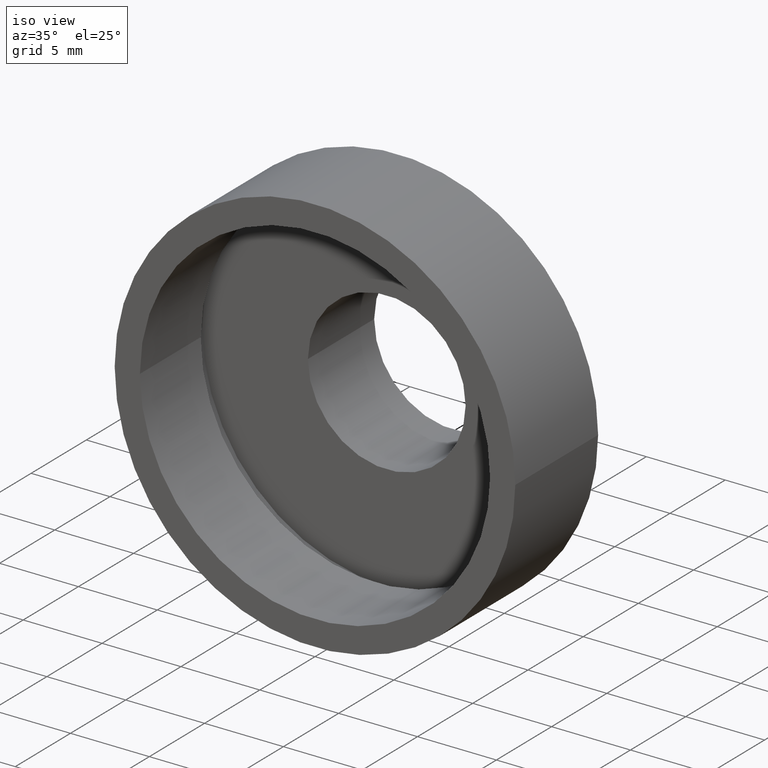
[diagram: clean part render]
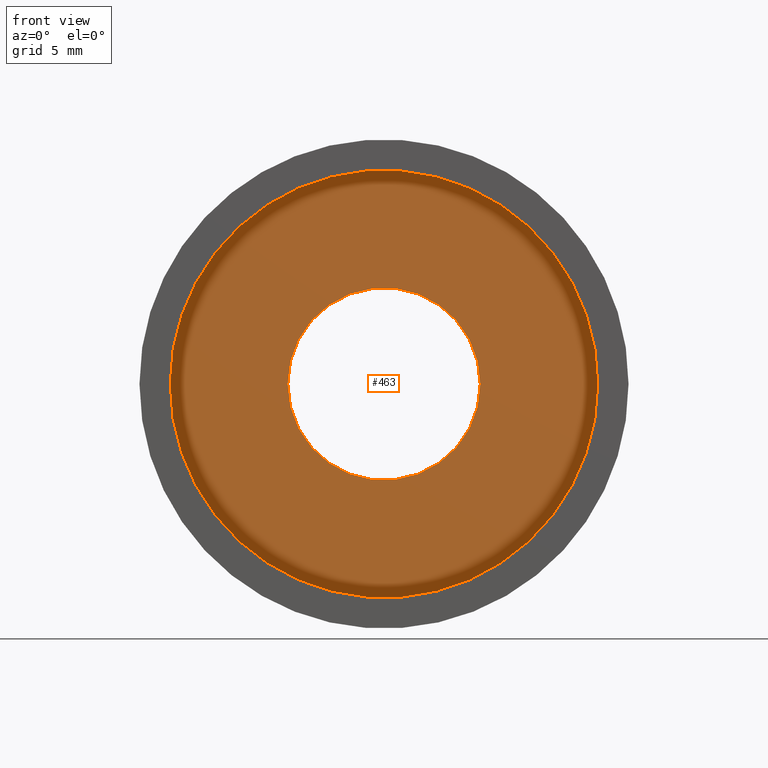
[diagram: tour spotlight — one face highlighted and labeled with its STEP entity id]
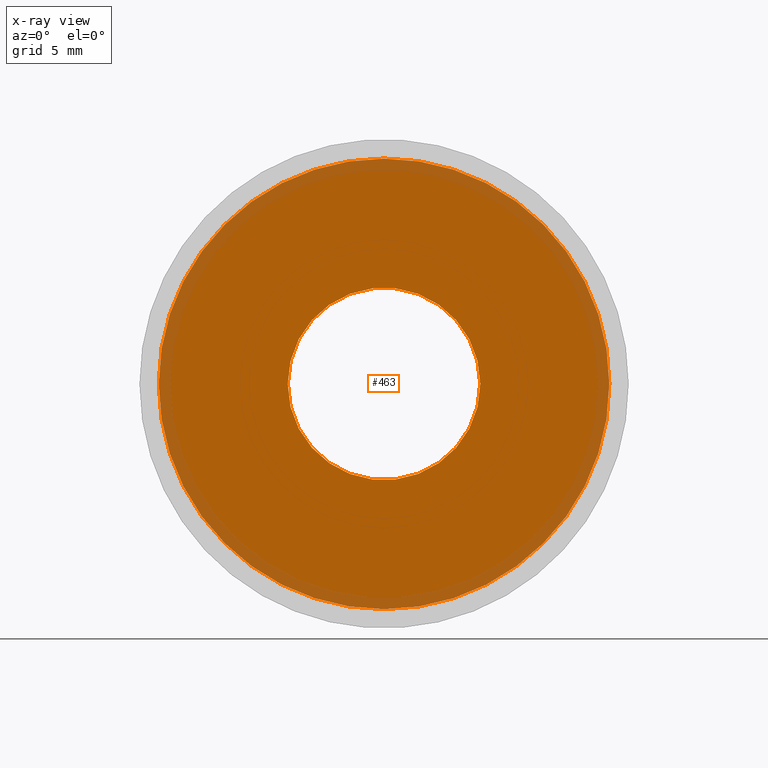
[diagram: x-ray of the same camera — body ghosted, this tour face saturated]
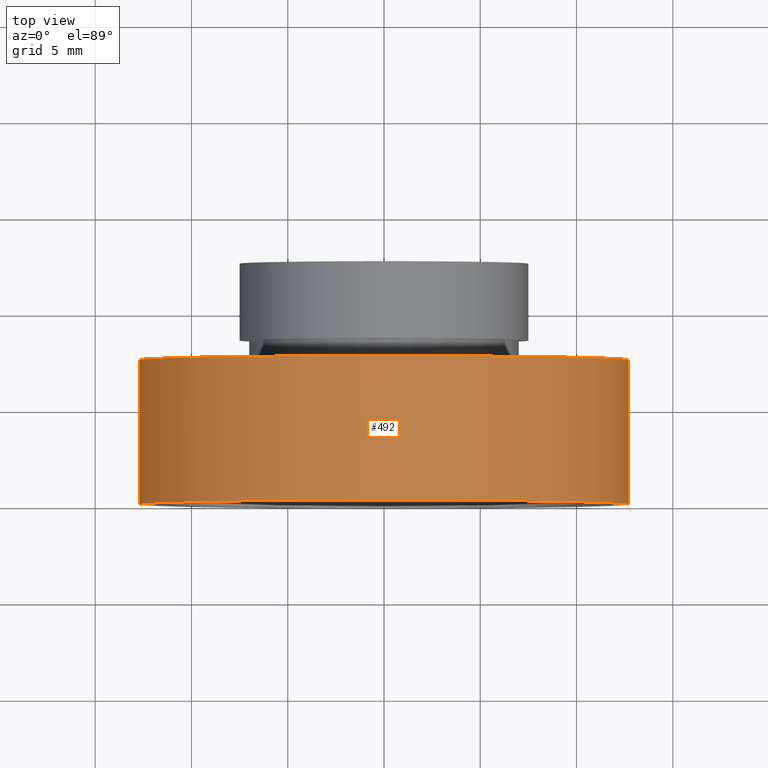
[diagram: tour spotlight — one face highlighted and labeled with its STEP entity id]
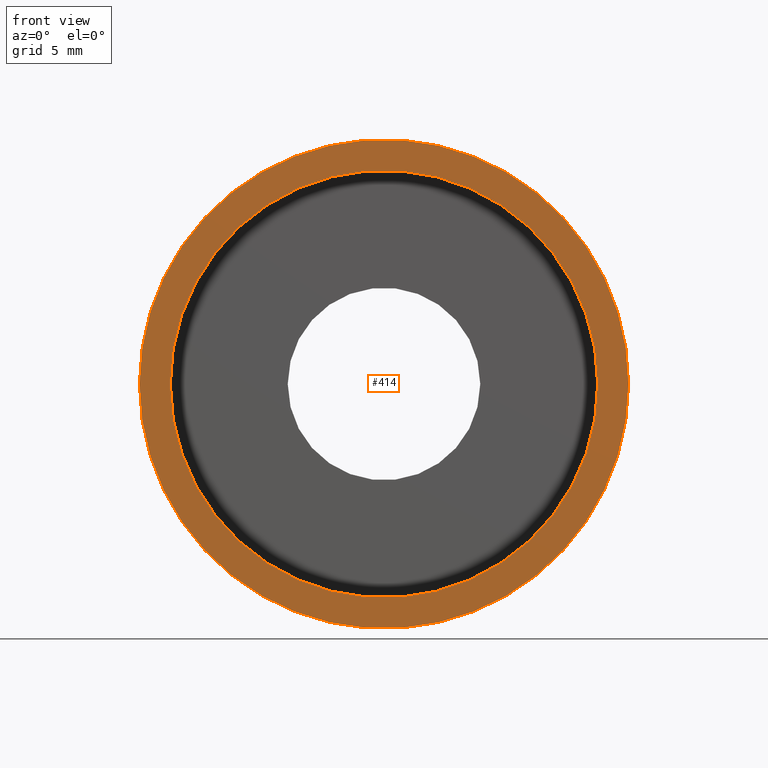
[diagram: tour spotlight — one face highlighted and labeled with its STEP entity id]
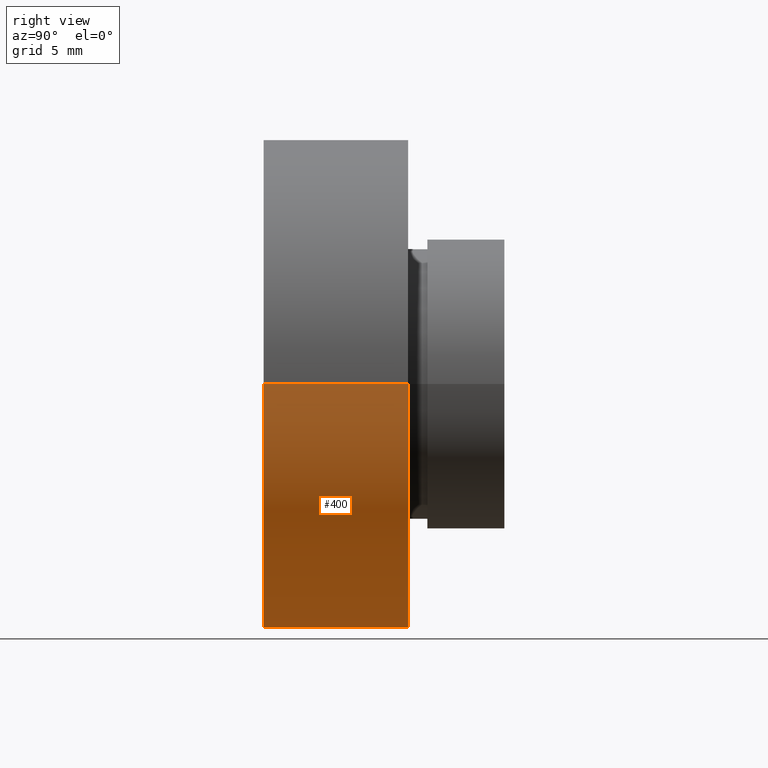
[diagram: tour spotlight — one face highlighted and labeled with its STEP entity id]
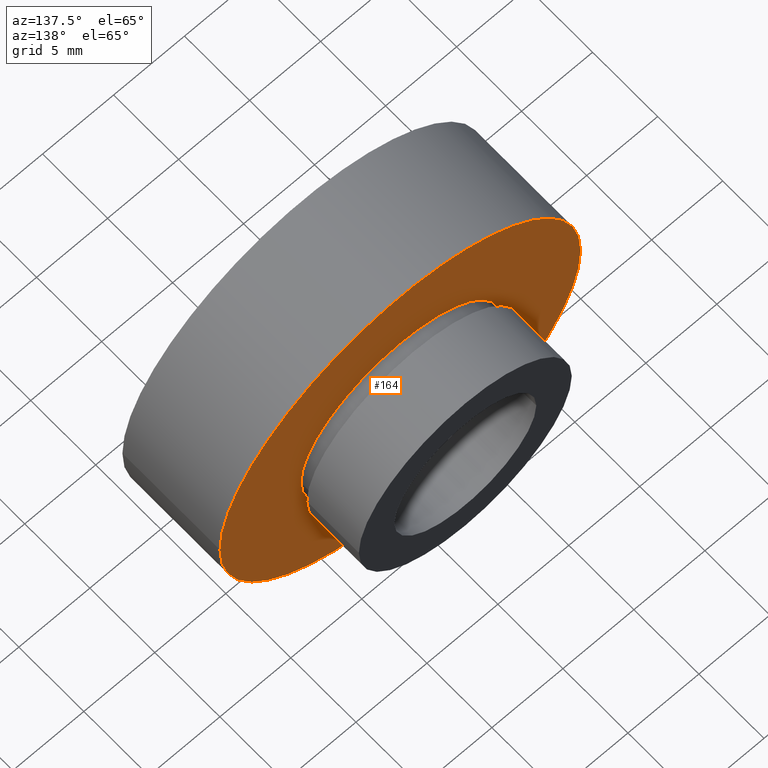
[diagram: tour spotlight — one face highlighted and labeled with its STEP entity id]
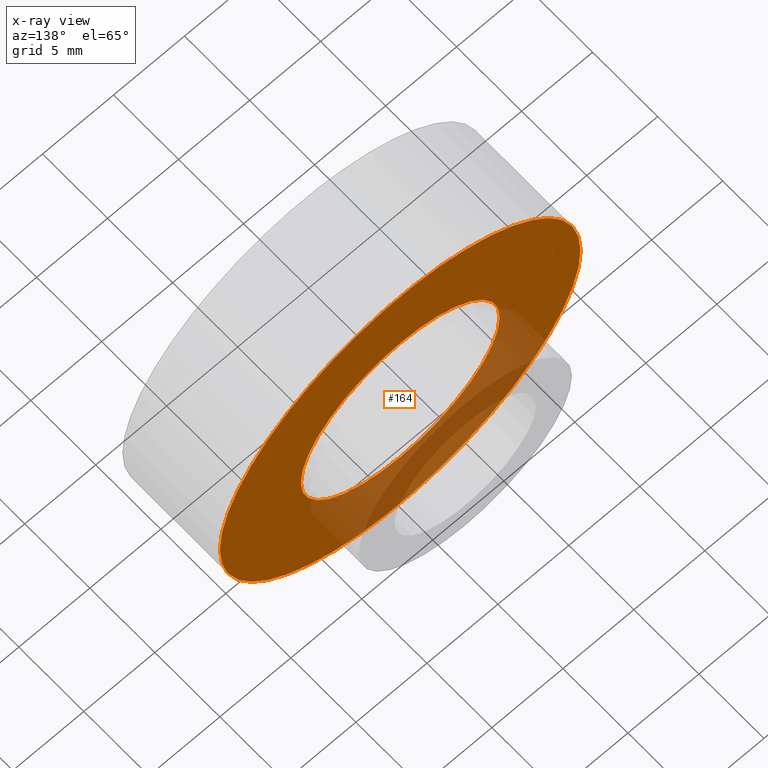
[diagram: x-ray of the same camera — body ghosted, this tour face saturated]
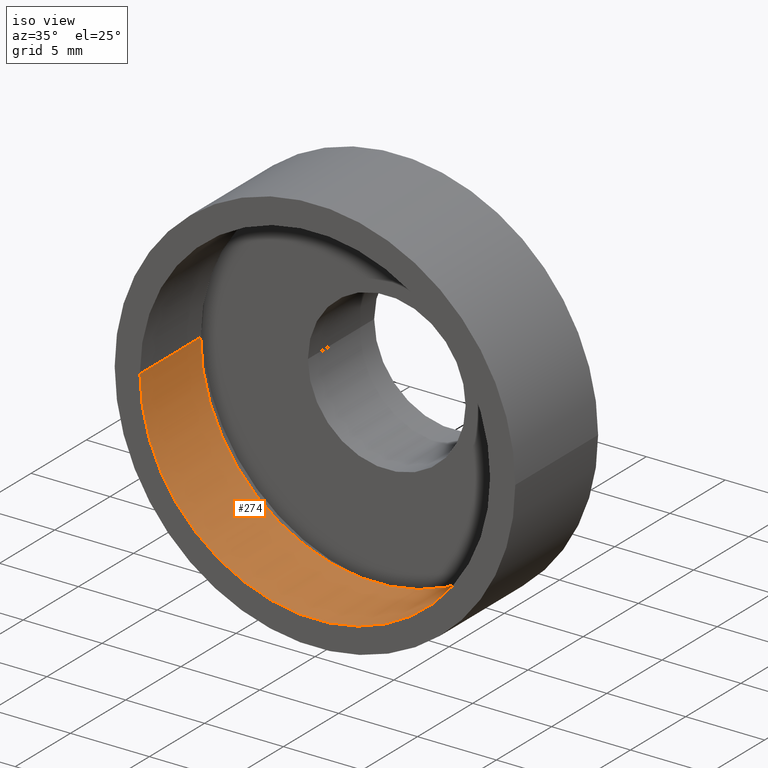
[diagram: tour spotlight — one face highlighted and labeled with its STEP entity id]
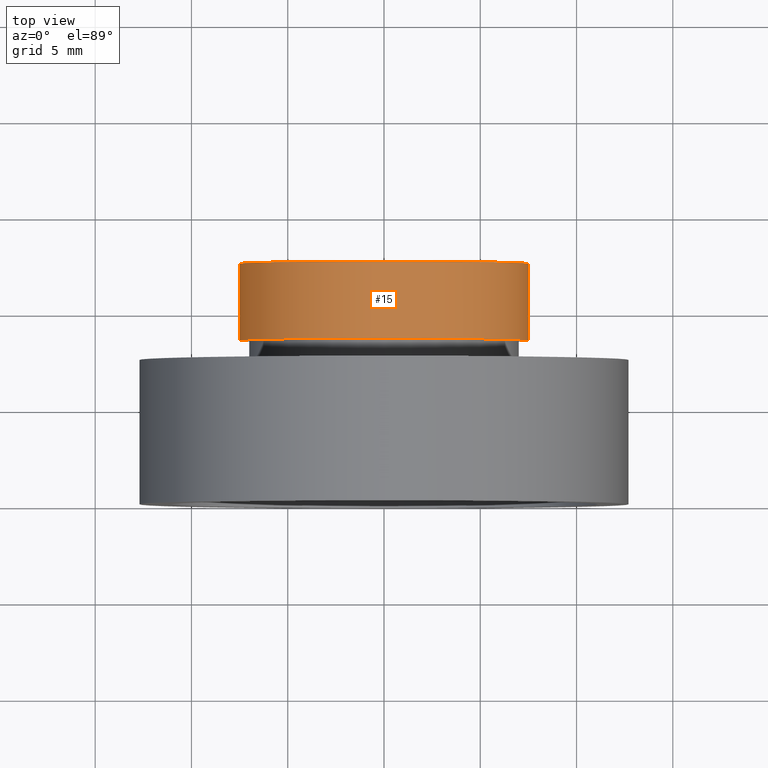
[diagram: tour spotlight — one face highlighted and labeled with its STEP entity id]
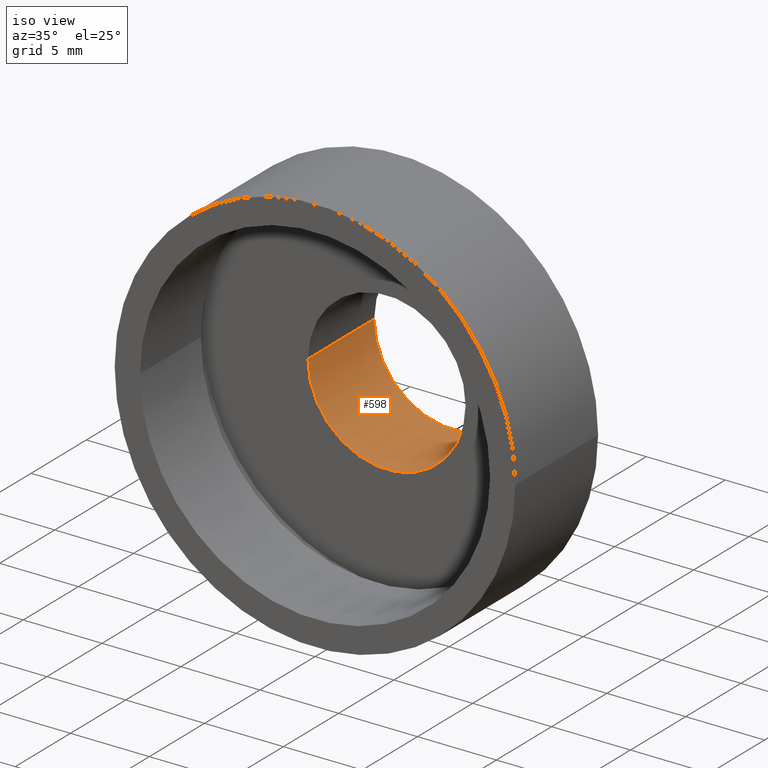
[diagram: tour spotlight — one face highlighted and labeled with its STEP entity id]
A machine part: a face-by-face anatomy tour. The part has 18 B-rep faces; the first image is the clean iso view, then the 8 largest visible faces are spotlighted one at a time (largest first), each with its STEP entity span.

Face 1 — front view, entity #463. An x-ray twin of the same camera follows (body ghosted, this face saturated) — the face is partly hidden behind the body. In plain terms, the highlighted planar face has unit normal (-0, 1, 0).
Definition (entity closure, byte-faithful):
#23 = DIRECTION ( 'NONE',  ( -1.224646799147351000E-016, 1.000000000000000000, 0.0000000000000000000 ) ) ;
#30 = ORIENTED_EDGE ( 'NONE', *, *, #561, .T. ) ;
#51 = CARTESIAN_POINT ( 'NONE',  ( 5.000000000000001800, 6.500000000000000000, 6.123233995736767300E-016 ) ) ;
#55 = DIRECTION ( 'NONE',  ( -1.000000000000000000, -1.482669637587014800E-016, 0.0000000000000000000 ) ) ;
#59 = EDGE_CURVE ( 'NONE', #60, #207, #167, .T. ) ;
#60 = VERTEX_POINT ( 'NONE', #355 ) ;
#111 = EDGE_LOOP ( 'NONE', ( #214, #322 ) ) ;
#143 = DIRECTION ( 'NONE',  ( -1.000000000000000000, -1.482669637587014800E-016, 0.0000000000000000000 ) ) ;
#165 = DIRECTION ( 'NONE',  ( -1.224646799147351000E-016, 1.000000000000000000, -0.0000000000000000000 ) ) ;
#167 = CIRCLE ( 'NONE', #396, 11.69999999999999900 ) ;
#179 = DIRECTION ( 'NONE',  ( -1.224646799147351000E-016, 1.000000000000000000, -0.0000000000000000000 ) ) ;
#185 = VERTEX_POINT ( 'NONE', #51 ) ;
#207 = VERTEX_POINT ( 'NONE', #469 ) ;
#214 = ORIENTED_EDGE ( 'NONE', *, *, #59, .F. ) ;
#253 = DIRECTION ( 'NONE',  ( -1.000000000000000000, -1.224646799147351000E-016, 0.0000000000000000000 ) ) ;
#258 = EDGE_CURVE ( 'NONE', #444, #185, #430, .T. ) ;
#304 = EDGE_LOOP ( 'NONE', ( #545, #30 ) ) ;
#322 = ORIENTED_EDGE ( 'NONE', *, *, #562, .F. ) ;
#355 = CARTESIAN_POINT ( 'NONE',  ( -11.69999999999999800, 6.499999999999995600, 0.0000000000000000000 ) ) ;
#361 = FACE_BOUND ( 'NONE', #304, .T. ) ;
#366 = AXIS2_PLACEMENT_3D ( 'NONE', #619, #165, #488 ) ;
#375 = DIRECTION ( 'NONE',  ( -1.224646799147351000E-016, 1.000000000000000000, -0.0000000000000000000 ) ) ;
#381 = CARTESIAN_POINT ( 'NONE',  ( 1.271920398992858000E-015, 6.499999999999997300, 0.0000000000000000000 ) ) ;
#384 = DIRECTION ( 'NONE',  ( -1.000000000000000000, -1.734723475976806800E-016, 0.0000000000000000000 ) ) ;
#391 = CIRCLE ( 'NONE', #471, 5.000000000000000900 ) ;
#396 = AXIS2_PLACEMENT_3D ( 'NONE', #381, #179, #143 ) ;
#412 = FACE_OUTER_BOUND ( 'NONE', #111, .T. ) ;
#430 = CIRCLE ( 'NONE', #366, 5.000000000000000900 ) ;
#440 = AXIS2_PLACEMENT_3D ( 'NONE', #606, #375, #55 ) ;
#442 = PLANE ( 'NONE',  #557 ) ;
#444 = VERTEX_POINT ( 'NONE', #556 ) ;
#457 = CIRCLE ( 'NONE', #440, 11.69999999999999900 ) ;
#463 = ADVANCED_FACE ( 'NONE', ( #412, #361 ), #442, .F. ) ;
#469 = CARTESIAN_POINT ( 'NONE',  ( 11.70000000000000100, 6.499999999999999100, 1.432836755002403100E-015 ) ) ;
#471 = AXIS2_PLACEMENT_3D ( 'NONE', #511, #555, #384 ) ;
#488 = DIRECTION ( 'NONE',  ( -1.000000000000000000, -1.734723475976806800E-016, 0.0000000000000000000 ) ) ;
#511 = CARTESIAN_POINT ( 'NONE',  ( 1.271920398992857800E-015, 6.499999999999999100, 0.0000000000000000000 ) ) ;
#545 = ORIENTED_EDGE ( 'NONE', *, *, #258, .T. ) ;
#555 = DIRECTION ( 'NONE',  ( -1.224646799147351000E-016, 1.000000000000000000, -0.0000000000000000000 ) ) ;
#556 = CARTESIAN_POINT ( 'NONE',  ( -5.000000000000000000, 6.499999999999998200, 0.0000000000000000000 ) ) ;
#557 = AXIS2_PLACEMENT_3D ( 'NONE', #577, #23, #253 ) ;
#561 = EDGE_CURVE ( 'NONE', #185, #444, #391, .T. ) ;
#562 = EDGE_CURVE ( 'NONE', #207, #60, #457, .T. ) ;
#577 = CARTESIAN_POINT ( 'NONE',  ( 5.000000000000001800, 6.499999999999999100, 0.0000000000000000000 ) ) ;
#606 = CARTESIAN_POINT ( 'NONE',  ( 1.271920398992858000E-015, 6.499999999999997300, 0.0000000000000000000 ) ) ;
#619 = CARTESIAN_POINT ( 'NONE',  ( 1.271920398992857800E-015, 6.499999999999999100, 0.0000000000000000000 ) ) ;

Face 2 — top view, entity #492. In plain terms, the highlighted cylindrical surface (partial cylindrical patch) has radius 12.7 mm, axis along (-0, 1, -0).
Definition (entity closure, byte-faithful):
#16 = DIRECTION ( 'NONE',  ( -1.000000000000000000, -1.365923996832131900E-016, 0.0000000000000000000 ) ) ;
#22 = AXIS2_PLACEMENT_3D ( 'NONE', #533, #590, #292 ) ;
#64 = DIRECTION ( 'NONE',  ( -1.000000000000000000, 0.0000000000000000000, 0.0000000000000000000 ) ) ;
#118 = CYLINDRICAL_SURFACE ( 'NONE', #548, 12.69999999999999900 ) ;
#126 = VERTEX_POINT ( 'NONE', #613 ) ;
#137 = CIRCLE ( 'NONE', #22, 12.70000000000000100 ) ;
#150 = CARTESIAN_POINT ( 'NONE',  ( -12.69999999999999900, -1.555301434917135900E-015, 0.0000000000000000000 ) ) ;
#155 = FACE_OUTER_BOUND ( 'NONE', #231, .T. ) ;
#176 = CARTESIAN_POINT ( 'NONE',  ( 0.0000000000000000000, 16.88601823708207700, 0.0000000000000000000 ) ) ;
#192 = DIRECTION ( 'NONE',  ( -1.224646799147351000E-016, 1.000000000000000000, -0.0000000000000000000 ) ) ;
#193 = ORIENTED_EDGE ( 'NONE', *, *, #307, .F. ) ;
#221 = VECTOR ( 'NONE', #504, 1000.000000000000000 ) ;
#231 = EDGE_LOOP ( 'NONE', ( #418, #281, #460, #193 ) ) ;
#232 = CARTESIAN_POINT ( 'NONE',  ( -12.69999999999999900, 16.88601823708207700, 0.0000000000000000000 ) ) ;
#281 = ORIENTED_EDGE ( 'NONE', *, *, #551, .T. ) ;
#292 = DIRECTION ( 'NONE',  ( -1.000000000000000000, -1.224646799147351000E-016, 0.0000000000000000000 ) ) ;
#306 = CARTESIAN_POINT ( 'NONE',  ( 1.149455719078122700E-015, 7.499999999999998200, 0.0000000000000000000 ) ) ;
#307 = EDGE_CURVE ( 'NONE', #435, #126, #475, .T. ) ;
#316 = LINE ( 'NONE', #580, #542 ) ;
#327 = VERTEX_POINT ( 'NONE', #346 ) ;
#346 = CARTESIAN_POINT ( 'NONE',  ( 12.70000000000000500, 1.555301434917136300E-015, 1.555301434917138800E-015 ) ) ;
#360 = VERTEX_POINT ( 'NONE', #585 ) ;
#372 = EDGE_CURVE ( 'NONE', #435, #327, #137, .T. ) ;
#418 = ORIENTED_EDGE ( 'NONE', *, *, #372, .T. ) ;
#423 = DIRECTION ( 'NONE',  ( -1.224646799147351000E-016, 1.000000000000000000, -0.0000000000000000000 ) ) ;
#435 = VERTEX_POINT ( 'NONE', #150 ) ;
#460 = ORIENTED_EDGE ( 'NONE', *, *, #539, .F. ) ;
#475 = LINE ( 'NONE', #232, #221 ) ;
#477 = AXIS2_PLACEMENT_3D ( 'NONE', #306, #192, #16 ) ;
#492 = ADVANCED_FACE ( 'NONE', ( #155 ), #118, .T. ) ;
#504 = DIRECTION ( 'NONE',  ( -1.224646799147351000E-016, 1.000000000000000000, -0.0000000000000000000 ) ) ;
#533 = CARTESIAN_POINT ( 'NONE',  ( 2.067940818438636100E-015, 0.0000000000000000000, 0.0000000000000000000 ) ) ;
#539 = EDGE_CURVE ( 'NONE', #126, #360, #552, .T. ) ;
#542 = VECTOR ( 'NONE', #591, 1000.000000000000000 ) ;
#548 = AXIS2_PLACEMENT_3D ( 'NONE', #176, #423, #64 ) ;
#551 = EDGE_CURVE ( 'NONE', #327, #360, #316, .T. ) ;
#552 = CIRCLE ( 'NONE', #477, 12.69999999999999800 ) ;
#580 = CARTESIAN_POINT ( 'NONE',  ( 12.69999999999999900, 16.88601823708207700, 1.555301434917138400E-015 ) ) ;
#585 = CARTESIAN_POINT ( 'NONE',  ( 12.69999999999999900, 7.500000000000000000, 1.555301434917138400E-015 ) ) ;
#590 = DIRECTION ( 'NONE',  ( -1.224646799147351000E-016, 1.000000000000000000, -0.0000000000000000000 ) ) ;
#591 = DIRECTION ( 'NONE',  ( -1.224646799147351000E-016, 1.000000000000000000, -0.0000000000000000000 ) ) ;
#613 = CARTESIAN_POINT ( 'NONE',  ( -12.69999999999999600, 7.499999999999996400, 0.0000000000000000000 ) ) ;

Face 3 — front view, entity #414. In plain terms, the highlighted planar face has unit normal (-0, 1, 0).
Definition (entity closure, byte-faithful):
#22 = AXIS2_PLACEMENT_3D ( 'NONE', #533, #590, #292 ) ;
#45 = CARTESIAN_POINT ( 'NONE',  ( 2.067940818438636100E-015, 0.0000000000000000000, 0.0000000000000000000 ) ) ;
#76 = DIRECTION ( 'NONE',  ( -1.224646799147351000E-016, 1.000000000000000000, -0.0000000000000000000 ) ) ;
#93 = EDGE_CURVE ( 'NONE', #327, #435, #160, .T. ) ;
#116 = AXIS2_PLACEMENT_3D ( 'NONE', #558, #600, #464 ) ;
#128 = CARTESIAN_POINT ( 'NONE',  ( 11.10000000000000100, 1.359357947053559600E-015, 1.359357947053562200E-015 ) ) ;
#131 = DIRECTION ( 'NONE',  ( -1.000000000000000000, -1.224646799147351000E-016, 0.0000000000000000000 ) ) ;
#137 = CIRCLE ( 'NONE', #22, 12.70000000000000100 ) ;
#150 = CARTESIAN_POINT ( 'NONE',  ( -12.69999999999999900, -1.555301434917135900E-015, 0.0000000000000000000 ) ) ;
#152 = DIRECTION ( 'NONE',  ( -1.224646799147351000E-016, 1.000000000000000000, -0.0000000000000000000 ) ) ;
#160 = CIRCLE ( 'NONE', #465, 12.70000000000000100 ) ;
#170 = FACE_OUTER_BOUND ( 'NONE', #294, .T. ) ;
#184 = ORIENTED_EDGE ( 'NONE', *, *, #93, .F. ) ;
#223 = CARTESIAN_POINT ( 'NONE',  ( -11.09999999999999800, -1.359357947053559600E-015, 0.0000000000000000000 ) ) ;
#247 = ORIENTED_EDGE ( 'NONE', *, *, #372, .F. ) ;
#252 = AXIS2_PLACEMENT_3D ( 'NONE', #379, #76, #530 ) ;
#292 = DIRECTION ( 'NONE',  ( -1.000000000000000000, -1.224646799147351000E-016, 0.0000000000000000000 ) ) ;
#294 = EDGE_LOOP ( 'NONE', ( #247, #184 ) ) ;
#301 = ORIENTED_EDGE ( 'NONE', *, *, #611, .T. ) ;
#323 = EDGE_LOOP ( 'NONE', ( #378, #301 ) ) ;
#327 = VERTEX_POINT ( 'NONE', #346 ) ;
#330 = DIRECTION ( 'NONE',  ( -1.224646799147351000E-016, 1.000000000000000000, -0.0000000000000000000 ) ) ;
#346 = CARTESIAN_POINT ( 'NONE',  ( 12.70000000000000500, 1.555301434917136300E-015, 1.555301434917138800E-015 ) ) ;
#363 = DIRECTION ( 'NONE',  ( -1.000000000000000000, -1.224646799147351000E-016, 0.0000000000000000000 ) ) ;
#372 = EDGE_CURVE ( 'NONE', #435, #327, #137, .T. ) ;
#378 = ORIENTED_EDGE ( 'NONE', *, *, #571, .T. ) ;
#379 = CARTESIAN_POINT ( 'NONE',  ( 2.067940818438636100E-015, 0.0000000000000000000, 0.0000000000000000000 ) ) ;
#382 = FACE_BOUND ( 'NONE', #323, .T. ) ;
#414 = ADVANCED_FACE ( 'NONE', ( #170, #382 ), #596, .F. ) ;
#432 = VERTEX_POINT ( 'NONE', #128 ) ;
#435 = VERTEX_POINT ( 'NONE', #150 ) ;
#449 = AXIS2_PLACEMENT_3D ( 'NONE', #534, #330, #363 ) ;
#464 = DIRECTION ( 'NONE',  ( -1.000000000000000000, -1.224646799147351000E-016, 0.0000000000000000000 ) ) ;
#465 = AXIS2_PLACEMENT_3D ( 'NONE', #45, #152, #131 ) ;
#472 = CIRCLE ( 'NONE', #252, 11.10000000000000000 ) ;
#530 = DIRECTION ( 'NONE',  ( -1.000000000000000000, -1.224646799147351000E-016, 0.0000000000000000000 ) ) ;
#533 = CARTESIAN_POINT ( 'NONE',  ( 2.067940818438636100E-015, 0.0000000000000000000, 0.0000000000000000000 ) ) ;
#534 = CARTESIAN_POINT ( 'NONE',  ( 2.067940818438636100E-015, 0.0000000000000000000, 0.0000000000000000000 ) ) ;
#536 = VERTEX_POINT ( 'NONE', #223 ) ;
#558 = CARTESIAN_POINT ( 'NONE',  ( 12.70000000000000300, -1.944126793646423000E-016, 0.0000000000000000000 ) ) ;
#571 = EDGE_CURVE ( 'NONE', #536, #432, #618, .T. ) ;
#590 = DIRECTION ( 'NONE',  ( -1.224646799147351000E-016, 1.000000000000000000, -0.0000000000000000000 ) ) ;
#596 = PLANE ( 'NONE',  #116 ) ;
#600 = DIRECTION ( 'NONE',  ( -1.224646799147351000E-016, 1.000000000000000000, 0.0000000000000000000 ) ) ;
#611 = EDGE_CURVE ( 'NONE', #432, #536, #472, .T. ) ;
#618 = CIRCLE ( 'NONE', #449, 11.10000000000000000 ) ;

Face 4 — right view, entity #400. In plain terms, the highlighted cylindrical surface (partial cylindrical patch) has radius 12.7 mm, axis along (-0, 1, -0).
Definition (entity closure, byte-faithful):
#3 = DIRECTION ( 'NONE',  ( -1.000000000000000000, -1.365923996832131900E-016, 0.0000000000000000000 ) ) ;
#45 = CARTESIAN_POINT ( 'NONE',  ( 2.067940818438636100E-015, 0.0000000000000000000, 0.0000000000000000000 ) ) ;
#86 = CIRCLE ( 'NONE', #377, 12.69999999999999800 ) ;
#93 = EDGE_CURVE ( 'NONE', #327, #435, #160, .T. ) ;
#113 = EDGE_LOOP ( 'NONE', ( #142, #453, #121, #233 ) ) ;
#121 = ORIENTED_EDGE ( 'NONE', *, *, #307, .T. ) ;
#126 = VERTEX_POINT ( 'NONE', #613 ) ;
#131 = DIRECTION ( 'NONE',  ( -1.000000000000000000, -1.224646799147351000E-016, 0.0000000000000000000 ) ) ;
#142 = ORIENTED_EDGE ( 'NONE', *, *, #551, .F. ) ;
#150 = CARTESIAN_POINT ( 'NONE',  ( -12.69999999999999900, -1.555301434917135900E-015, 0.0000000000000000000 ) ) ;
#152 = DIRECTION ( 'NONE',  ( -1.224646799147351000E-016, 1.000000000000000000, -0.0000000000000000000 ) ) ;
#160 = CIRCLE ( 'NONE', #465, 12.70000000000000100 ) ;
#197 = DIRECTION ( 'NONE',  ( -1.000000000000000000, 0.0000000000000000000, 0.0000000000000000000 ) ) ;
#221 = VECTOR ( 'NONE', #504, 1000.000000000000000 ) ;
#232 = CARTESIAN_POINT ( 'NONE',  ( -12.69999999999999900, 16.88601823708207700, 0.0000000000000000000 ) ) ;
#233 = ORIENTED_EDGE ( 'NONE', *, *, #582, .F. ) ;
#307 = EDGE_CURVE ( 'NONE', #435, #126, #475, .T. ) ;
#314 = CARTESIAN_POINT ( 'NONE',  ( 0.0000000000000000000, 16.88601823708207700, 0.0000000000000000000 ) ) ;
#316 = LINE ( 'NONE', #580, #542 ) ;
#327 = VERTEX_POINT ( 'NONE', #346 ) ;
#343 = CYLINDRICAL_SURFACE ( 'NONE', #588, 12.69999999999999900 ) ;
#346 = CARTESIAN_POINT ( 'NONE',  ( 12.70000000000000500, 1.555301434917136300E-015, 1.555301434917138800E-015 ) ) ;
#360 = VERTEX_POINT ( 'NONE', #585 ) ;
#377 = AXIS2_PLACEMENT_3D ( 'NONE', #403, #422, #3 ) ;
#400 = ADVANCED_FACE ( 'NONE', ( #420 ), #343, .T. ) ;
#403 = CARTESIAN_POINT ( 'NONE',  ( 1.149455719078122700E-015, 7.499999999999998200, 0.0000000000000000000 ) ) ;
#420 = FACE_OUTER_BOUND ( 'NONE', #113, .T. ) ;
#422 = DIRECTION ( 'NONE',  ( -1.224646799147351000E-016, 1.000000000000000000, -0.0000000000000000000 ) ) ;
#435 = VERTEX_POINT ( 'NONE', #150 ) ;
#453 = ORIENTED_EDGE ( 'NONE', *, *, #93, .T. ) ;
#465 = AXIS2_PLACEMENT_3D ( 'NONE', #45, #152, #131 ) ;
#475 = LINE ( 'NONE', #232, #221 ) ;
#504 = DIRECTION ( 'NONE',  ( -1.224646799147351000E-016, 1.000000000000000000, -0.0000000000000000000 ) ) ;
#542 = VECTOR ( 'NONE', #591, 1000.000000000000000 ) ;
#551 = EDGE_CURVE ( 'NONE', #327, #360, #316, .T. ) ;
#579 = DIRECTION ( 'NONE',  ( -1.224646799147351000E-016, 1.000000000000000000, -0.0000000000000000000 ) ) ;
#580 = CARTESIAN_POINT ( 'NONE',  ( 12.69999999999999900, 16.88601823708207700, 1.555301434917138400E-015 ) ) ;
#582 = EDGE_CURVE ( 'NONE', #360, #126, #86, .T. ) ;
#585 = CARTESIAN_POINT ( 'NONE',  ( 12.69999999999999900, 7.500000000000000000, 1.555301434917138400E-015 ) ) ;
#588 = AXIS2_PLACEMENT_3D ( 'NONE', #314, #579, #197 ) ;
#591 = DIRECTION ( 'NONE',  ( -1.224646799147351000E-016, 1.000000000000000000, -0.0000000000000000000 ) ) ;
#613 = CARTESIAN_POINT ( 'NONE',  ( -12.69999999999999600, 7.499999999999996400, 0.0000000000000000000 ) ) ;

Face 5 — auxiliary view, entity #164. An x-ray twin of the same camera follows (body ghosted, this face saturated) — the face is partly hidden behind the body. In plain terms, the highlighted planar face has unit normal (0, -1, 0).
Definition (entity closure, byte-faithful):
#3 = DIRECTION ( 'NONE',  ( -1.000000000000000000, -1.365923996832131900E-016, 0.0000000000000000000 ) ) ;
#16 = DIRECTION ( 'NONE',  ( -1.000000000000000000, -1.365923996832131900E-016, 0.0000000000000000000 ) ) ;
#20 = ORIENTED_EDGE ( 'NONE', *, *, #594, .F. ) ;
#33 = AXIS2_PLACEMENT_3D ( 'NONE', #114, #297, #69 ) ;
#49 = DIRECTION ( 'NONE',  ( 1.224646799147351000E-016, -1.000000000000000000, 0.0000000000000000000 ) ) ;
#69 = DIRECTION ( 'NONE',  ( -1.000000000000000000, -1.239088197126290800E-016, 0.0000000000000000000 ) ) ;
#86 = CIRCLE ( 'NONE', #377, 12.69999999999999800 ) ;
#110 = DIRECTION ( 'NONE',  ( 1.000000000000000000, 1.224646799147351000E-016, 0.0000000000000000000 ) ) ;
#114 = CARTESIAN_POINT ( 'NONE',  ( 1.149455719078122500E-015, 7.500000000000000000, 0.0000000000000000000 ) ) ;
#115 = ORIENTED_EDGE ( 'NONE', *, *, #210, .F. ) ;
#123 = CARTESIAN_POINT ( 'NONE',  ( 7.000000000000000900, 7.500000000000000000, 0.0000000000000000000 ) ) ;
#126 = VERTEX_POINT ( 'NONE', #613 ) ;
#134 = CARTESIAN_POINT ( 'NONE',  ( 7.000000000000000900, 7.500000000000000900, 8.572527594031473200E-016 ) ) ;
#158 = ORIENTED_EDGE ( 'NONE', *, *, #539, .T. ) ;
#164 = ADVANCED_FACE ( 'NONE', ( #515, #500 ), #351, .F. ) ;
#169 = DIRECTION ( 'NONE',  ( -1.000000000000000000, -1.239088197126290800E-016, 0.0000000000000000000 ) ) ;
#192 = DIRECTION ( 'NONE',  ( -1.224646799147351000E-016, 1.000000000000000000, -0.0000000000000000000 ) ) ;
#196 = CIRCLE ( 'NONE', #341, 7.000000000000000000 ) ;
#206 = CARTESIAN_POINT ( 'NONE',  ( 1.149455719078122500E-015, 7.500000000000000000, 0.0000000000000000000 ) ) ;
#210 = EDGE_CURVE ( 'NONE', #535, #280, #487, .T. ) ;
#280 = VERTEX_POINT ( 'NONE', #519 ) ;
#285 = DIRECTION ( 'NONE',  ( -1.224646799147351000E-016, 1.000000000000000000, -0.0000000000000000000 ) ) ;
#297 = DIRECTION ( 'NONE',  ( -1.224646799147351000E-016, 1.000000000000000000, -0.0000000000000000000 ) ) ;
#300 = AXIS2_PLACEMENT_3D ( 'NONE', #123, #49, #110 ) ;
#306 = CARTESIAN_POINT ( 'NONE',  ( 1.149455719078122700E-015, 7.499999999999998200, 0.0000000000000000000 ) ) ;
#341 = AXIS2_PLACEMENT_3D ( 'NONE', #206, #285, #169 ) ;
#351 = PLANE ( 'NONE',  #300 ) ;
#356 = EDGE_LOOP ( 'NONE', ( #158, #470 ) ) ;
#360 = VERTEX_POINT ( 'NONE', #585 ) ;
#376 = EDGE_LOOP ( 'NONE', ( #20, #115 ) ) ;
#377 = AXIS2_PLACEMENT_3D ( 'NONE', #403, #422, #3 ) ;
#403 = CARTESIAN_POINT ( 'NONE',  ( 1.149455719078122700E-015, 7.499999999999998200, 0.0000000000000000000 ) ) ;
#422 = DIRECTION ( 'NONE',  ( -1.224646799147351000E-016, 1.000000000000000000, -0.0000000000000000000 ) ) ;
#470 = ORIENTED_EDGE ( 'NONE', *, *, #582, .T. ) ;
#477 = AXIS2_PLACEMENT_3D ( 'NONE', #306, #192, #16 ) ;
#487 = CIRCLE ( 'NONE', #33, 7.000000000000000000 ) ;
#500 = FACE_OUTER_BOUND ( 'NONE', #356, .T. ) ;
#515 = FACE_BOUND ( 'NONE', #376, .T. ) ;
#519 = CARTESIAN_POINT ( 'NONE',  ( -6.999999999999999100, 7.499999999999999100, 0.0000000000000000000 ) ) ;
#535 = VERTEX_POINT ( 'NONE', #134 ) ;
#539 = EDGE_CURVE ( 'NONE', #126, #360, #552, .T. ) ;
#552 = CIRCLE ( 'NONE', #477, 12.69999999999999800 ) ;
#582 = EDGE_CURVE ( 'NONE', #360, #126, #86, .T. ) ;
#585 = CARTESIAN_POINT ( 'NONE',  ( 12.69999999999999900, 7.500000000000000000, 1.555301434917138400E-015 ) ) ;
#594 = EDGE_CURVE ( 'NONE', #280, #535, #196, .T. ) ;
#613 = CARTESIAN_POINT ( 'NONE',  ( -12.69999999999999600, 7.499999999999996400, 0.0000000000000000000 ) ) ;

Face 6 — iso view, entity #274. In plain terms, the highlighted cylindrical surface (partial cylindrical patch) has radius 11.1 mm, axis along (-0, 1, -0).
Definition (entity closure, byte-faithful):
#21 = VECTOR ( 'NONE', #497, 1000.000000000000000 ) ;
#31 = CARTESIAN_POINT ( 'NONE',  ( 1.394385078907593200E-015, 5.499999999999996400, 0.0000000000000000000 ) ) ;
#61 = EDGE_LOOP ( 'NONE', ( #243, #248, #272, #309 ) ) ;
#72 = CARTESIAN_POINT ( 'NONE',  ( 11.10000000000000000, 16.88601823708207700, 1.359357947053562200E-015 ) ) ;
#76 = DIRECTION ( 'NONE',  ( -1.224646799147351000E-016, 1.000000000000000000, -0.0000000000000000000 ) ) ;
#99 = LINE ( 'NONE', #468, #537 ) ;
#128 = CARTESIAN_POINT ( 'NONE',  ( 11.10000000000000100, 1.359357947053559600E-015, 1.359357947053562200E-015 ) ) ;
#175 = EDGE_CURVE ( 'NONE', #536, #240, #99, .T. ) ;
#189 = CARTESIAN_POINT ( 'NONE',  ( -11.09999999999999800, 5.499999999999994700, 0.0000000000000000000 ) ) ;
#223 = CARTESIAN_POINT ( 'NONE',  ( -11.09999999999999800, -1.359357947053559600E-015, 0.0000000000000000000 ) ) ;
#240 = VERTEX_POINT ( 'NONE', #189 ) ;
#243 = ORIENTED_EDGE ( 'NONE', *, *, #611, .F. ) ;
#248 = ORIENTED_EDGE ( 'NONE', *, *, #478, .T. ) ;
#251 = CARTESIAN_POINT ( 'NONE',  ( 0.0000000000000000000, 16.88601823708207700, 0.0000000000000000000 ) ) ;
#252 = AXIS2_PLACEMENT_3D ( 'NONE', #379, #76, #530 ) ;
#260 = CARTESIAN_POINT ( 'NONE',  ( 11.10000000000000100, 5.499999999999998200, 1.359357947053562200E-015 ) ) ;
#269 = LINE ( 'NONE', #72, #21 ) ;
#270 = AXIS2_PLACEMENT_3D ( 'NONE', #251, #481, #474 ) ;
#272 = ORIENTED_EDGE ( 'NONE', *, *, #532, .T. ) ;
#274 = ADVANCED_FACE ( 'NONE', ( #335 ), #505, .F. ) ;
#309 = ORIENTED_EDGE ( 'NONE', *, *, #175, .F. ) ;
#326 = VERTEX_POINT ( 'NONE', #260 ) ;
#335 = FACE_OUTER_BOUND ( 'NONE', #61, .T. ) ;
#342 = DIRECTION ( 'NONE',  ( -1.000000000000000000, -1.562813942321447800E-016, 0.0000000000000000000 ) ) ;
#349 = CIRCLE ( 'NONE', #495, 11.10000000000000000 ) ;
#379 = CARTESIAN_POINT ( 'NONE',  ( 2.067940818438636100E-015, 0.0000000000000000000, 0.0000000000000000000 ) ) ;
#432 = VERTEX_POINT ( 'NONE', #128 ) ;
#462 = DIRECTION ( 'NONE',  ( -1.224646799147351000E-016, 1.000000000000000000, -0.0000000000000000000 ) ) ;
#468 = CARTESIAN_POINT ( 'NONE',  ( -11.10000000000000000, 16.88601823708207700, 0.0000000000000000000 ) ) ;
#472 = CIRCLE ( 'NONE', #252, 11.10000000000000000 ) ;
#474 = DIRECTION ( 'NONE',  ( -1.000000000000000000, 0.0000000000000000000, 0.0000000000000000000 ) ) ;
#478 = EDGE_CURVE ( 'NONE', #432, #326, #269, .T. ) ;
#481 = DIRECTION ( 'NONE',  ( -1.224646799147351000E-016, 1.000000000000000000, -0.0000000000000000000 ) ) ;
#495 = AXIS2_PLACEMENT_3D ( 'NONE', #31, #510, #342 ) ;
#497 = DIRECTION ( 'NONE',  ( -1.224646799147351000E-016, 1.000000000000000000, -0.0000000000000000000 ) ) ;
#505 = CYLINDRICAL_SURFACE ( 'NONE', #270, 11.10000000000000000 ) ;
#510 = DIRECTION ( 'NONE',  ( -1.224646799147351000E-016, 1.000000000000000000, -0.0000000000000000000 ) ) ;
#530 = DIRECTION ( 'NONE',  ( -1.000000000000000000, -1.224646799147351000E-016, 0.0000000000000000000 ) ) ;
#532 = EDGE_CURVE ( 'NONE', #326, #240, #349, .T. ) ;
#536 = VERTEX_POINT ( 'NONE', #223 ) ;
#537 = VECTOR ( 'NONE', #462, 1000.000000000000000 ) ;
#611 = EDGE_CURVE ( 'NONE', #432, #536, #472, .T. ) ;

Face 7 — top view, entity #15. In plain terms, the highlighted cylindrical surface (partial cylindrical patch) has radius 7.5 mm, axis along (-0, 1, -0).
Definition (entity closure, byte-faithful):
#10 = CARTESIAN_POINT ( 'NONE',  ( 1.026991039163387700E-015, 8.499999999999998200, 0.0000000000000000000 ) ) ;
#15 = ADVANCED_FACE ( 'NONE', ( #621 ), #67, .T. ) ;
#17 = DIRECTION ( 'NONE',  ( -1.224646799147351000E-016, 1.000000000000000000, -0.0000000000000000000 ) ) ;
#35 = VECTOR ( 'NONE', #174, 1000.000000000000000 ) ;
#38 = VECTOR ( 'NONE', #501, 1000.000000000000000 ) ;
#53 = CIRCLE ( 'NONE', #141, 7.500000000000000000 ) ;
#67 = CYLINDRICAL_SURFACE ( 'NONE', #347, 7.500000000000000000 ) ;
#73 = CARTESIAN_POINT ( 'NONE',  ( 7.500000000000000000, 16.88601823708207700, 9.184850993605147900E-016 ) ) ;
#82 = CARTESIAN_POINT ( 'NONE',  ( 7.500000000000000900, 12.49999999999999800, 9.184850993605147900E-016 ) ) ;
#103 = CARTESIAN_POINT ( 'NONE',  ( 7.500000000000000900, 8.500000000000000000, 9.184850993605147900E-016 ) ) ;
#140 = DIRECTION ( 'NONE',  ( -1.000000000000000000, -2.312964634635743000E-016, 0.0000000000000000000 ) ) ;
#141 = AXIS2_PLACEMENT_3D ( 'NONE', #288, #259, #140 ) ;
#161 = EDGE_LOOP ( 'NONE', ( #328, #348, #241, #374 ) ) ;
#174 = DIRECTION ( 'NONE',  ( -1.224646799147351000E-016, 1.000000000000000000, -0.0000000000000000000 ) ) ;
#180 = CARTESIAN_POINT ( 'NONE',  ( -7.499999999999999100, 8.499999999999996400, 0.0000000000000000000 ) ) ;
#203 = DIRECTION ( 'NONE',  ( -1.000000000000000000, -2.312964634635743000E-016, 0.0000000000000000000 ) ) ;
#205 = CARTESIAN_POINT ( 'NONE',  ( -7.500000000000000000, 16.88601823708207700, 0.0000000000000000000 ) ) ;
#228 = CARTESIAN_POINT ( 'NONE',  ( 0.0000000000000000000, 16.88601823708207700, 0.0000000000000000000 ) ) ;
#241 = ORIENTED_EDGE ( 'NONE', *, *, #395, .F. ) ;
#259 = DIRECTION ( 'NONE',  ( -1.224646799147351000E-016, 1.000000000000000000, -0.0000000000000000000 ) ) ;
#266 = VERTEX_POINT ( 'NONE', #82 ) ;
#288 = CARTESIAN_POINT ( 'NONE',  ( 5.371323195044473300E-016, 12.49999999999999600, 0.0000000000000000000 ) ) ;
#328 = ORIENTED_EDGE ( 'NONE', *, *, #456, .T. ) ;
#332 = DIRECTION ( 'NONE',  ( -1.224646799147351000E-016, 1.000000000000000000, -0.0000000000000000000 ) ) ;
#337 = AXIS2_PLACEMENT_3D ( 'NONE', #10, #17, #203 ) ;
#347 = AXIS2_PLACEMENT_3D ( 'NONE', #228, #332, #437 ) ;
#348 = ORIENTED_EDGE ( 'NONE', *, *, #622, .T. ) ;
#359 = LINE ( 'NONE', #205, #38 ) ;
#367 = VERTEX_POINT ( 'NONE', #180 ) ;
#374 = ORIENTED_EDGE ( 'NONE', *, *, #553, .F. ) ;
#394 = VERTEX_POINT ( 'NONE', #514 ) ;
#395 = EDGE_CURVE ( 'NONE', #394, #266, #53, .T. ) ;
#406 = CIRCLE ( 'NONE', #337, 7.500000000000000000 ) ;
#407 = LINE ( 'NONE', #73, #35 ) ;
#434 = VERTEX_POINT ( 'NONE', #103 ) ;
#437 = DIRECTION ( 'NONE',  ( -1.000000000000000000, 0.0000000000000000000, 0.0000000000000000000 ) ) ;
#456 = EDGE_CURVE ( 'NONE', #367, #434, #406, .T. ) ;
#501 = DIRECTION ( 'NONE',  ( -1.224646799147351000E-016, 1.000000000000000000, -0.0000000000000000000 ) ) ;
#514 = CARTESIAN_POINT ( 'NONE',  ( -7.499999999999999100, 12.49999999999999500, 0.0000000000000000000 ) ) ;
#553 = EDGE_CURVE ( 'NONE', #367, #394, #359, .T. ) ;
#621 = FACE_OUTER_BOUND ( 'NONE', #161, .T. ) ;
#622 = EDGE_CURVE ( 'NONE', #434, #266, #407, .T. ) ;

Face 8 — iso view, entity #598. In plain terms, the highlighted cylindrical surface (partial cylindrical patch) has radius 5 mm, axis along (-0, 1, -0).
Definition (entity closure, byte-faithful):
#43 = CARTESIAN_POINT ( 'NONE',  ( 5.000000000000000900, 16.88601823708207700, 6.123233995736767300E-016 ) ) ;
#51 = CARTESIAN_POINT ( 'NONE',  ( 5.000000000000001800, 6.500000000000000000, 6.123233995736767300E-016 ) ) ;
#56 = CARTESIAN_POINT ( 'NONE',  ( -5.000000000000000000, 12.50000000000000000, 0.0000000000000000000 ) ) ;
#92 = DIRECTION ( 'NONE',  ( -1.224646799147351000E-016, 1.000000000000000000, -0.0000000000000000000 ) ) ;
#104 = CYLINDRICAL_SURFACE ( 'NONE', #230, 5.000000000000000900 ) ;
#154 = CARTESIAN_POINT ( 'NONE',  ( -5.000000000000000900, 16.88601823708207700, 0.0000000000000000000 ) ) ;
#185 = VERTEX_POINT ( 'NONE', #51 ) ;
#186 = VERTEX_POINT ( 'NONE', #56 ) ;
#200 = VERTEX_POINT ( 'NONE', #486 ) ;
#211 = DIRECTION ( 'NONE',  ( -1.224646799147351000E-016, 1.000000000000000000, -0.0000000000000000000 ) ) ;
#218 = EDGE_LOOP ( 'NONE', ( #388, #416, #523, #425 ) ) ;
#224 = DIRECTION ( 'NONE',  ( -1.000000000000000000, 0.0000000000000000000, 0.0000000000000000000 ) ) ;
#230 = AXIS2_PLACEMENT_3D ( 'NONE', #476, #211, #224 ) ;
#278 = EDGE_CURVE ( 'NONE', #185, #200, #597, .T. ) ;
#293 = CARTESIAN_POINT ( 'NONE',  ( 5.371323195044471300E-016, 12.50000000000000000, 0.0000000000000000000 ) ) ;
#325 = DIRECTION ( 'NONE',  ( -1.224646799147351000E-016, 1.000000000000000000, -0.0000000000000000000 ) ) ;
#331 = FACE_OUTER_BOUND ( 'NONE', #218, .T. ) ;
#353 = DIRECTION ( 'NONE',  ( -1.224646799147351000E-016, 1.000000000000000000, -0.0000000000000000000 ) ) ;
#365 = DIRECTION ( 'NONE',  ( -1.000000000000000000, 0.0000000000000000000, 0.0000000000000000000 ) ) ;
#371 = AXIS2_PLACEMENT_3D ( 'NONE', #293, #353, #365 ) ;
#384 = DIRECTION ( 'NONE',  ( -1.000000000000000000, -1.734723475976806800E-016, 0.0000000000000000000 ) ) ;
#388 = ORIENTED_EDGE ( 'NONE', *, *, #561, .F. ) ;
#391 = CIRCLE ( 'NONE', #471, 5.000000000000000900 ) ;
#416 = ORIENTED_EDGE ( 'NONE', *, *, #278, .T. ) ;
#425 = ORIENTED_EDGE ( 'NONE', *, *, #599, .F. ) ;
#429 = CIRCLE ( 'NONE', #371, 5.000000000000000900 ) ;
#444 = VERTEX_POINT ( 'NONE', #556 ) ;
#447 = LINE ( 'NONE', #154, #581 ) ;
#471 = AXIS2_PLACEMENT_3D ( 'NONE', #511, #555, #384 ) ;
#476 = CARTESIAN_POINT ( 'NONE',  ( 0.0000000000000000000, 16.88601823708207700, 0.0000000000000000000 ) ) ;
#486 = CARTESIAN_POINT ( 'NONE',  ( 5.000000000000001800, 12.50000000000000000, 6.123233995736767300E-016 ) ) ;
#511 = CARTESIAN_POINT ( 'NONE',  ( 1.271920398992857800E-015, 6.499999999999999100, 0.0000000000000000000 ) ) ;
#523 = ORIENTED_EDGE ( 'NONE', *, *, #592, .T. ) ;
#547 = VECTOR ( 'NONE', #92, 1000.000000000000000 ) ;
#555 = DIRECTION ( 'NONE',  ( -1.224646799147351000E-016, 1.000000000000000000, -0.0000000000000000000 ) ) ;
#556 = CARTESIAN_POINT ( 'NONE',  ( -5.000000000000000000, 6.499999999999998200, 0.0000000000000000000 ) ) ;
#561 = EDGE_CURVE ( 'NONE', #185, #444, #391, .T. ) ;
#581 = VECTOR ( 'NONE', #325, 1000.000000000000000 ) ;
#592 = EDGE_CURVE ( 'NONE', #200, #186, #429, .T. ) ;
#597 = LINE ( 'NONE', #43, #547 ) ;
#598 = ADVANCED_FACE ( 'NONE', ( #331 ), #104, .F. ) ;
#599 = EDGE_CURVE ( 'NONE', #444, #186, #447, .T. ) ;